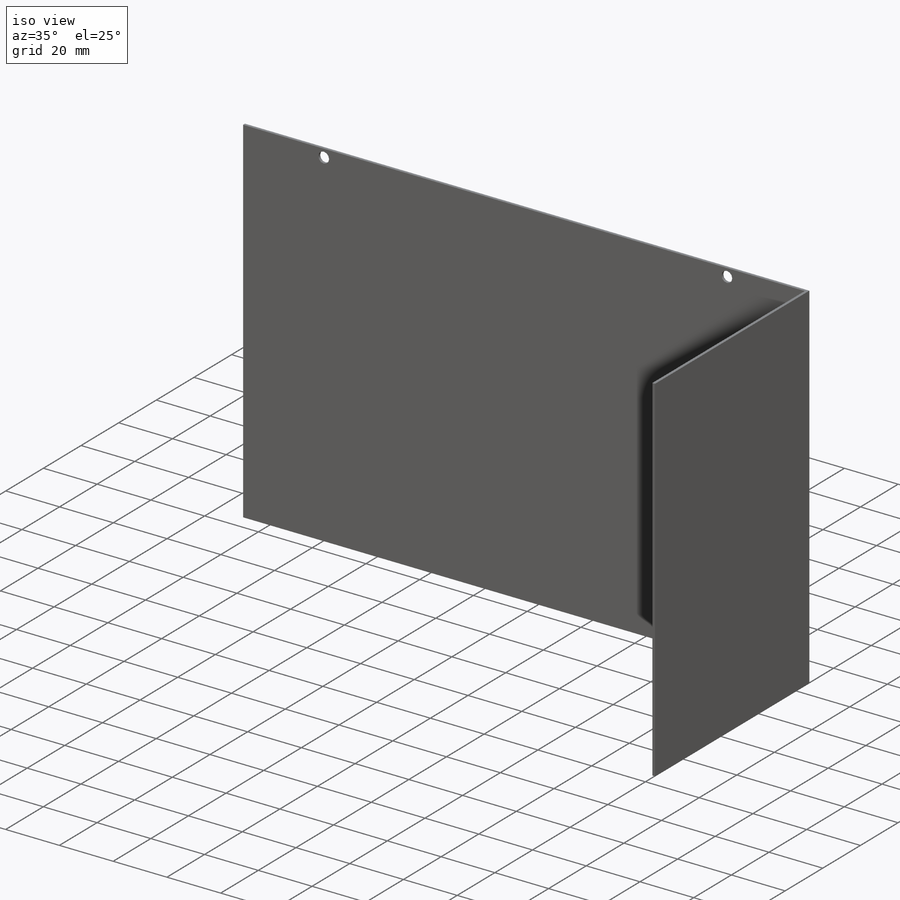
[diagram: iso view]
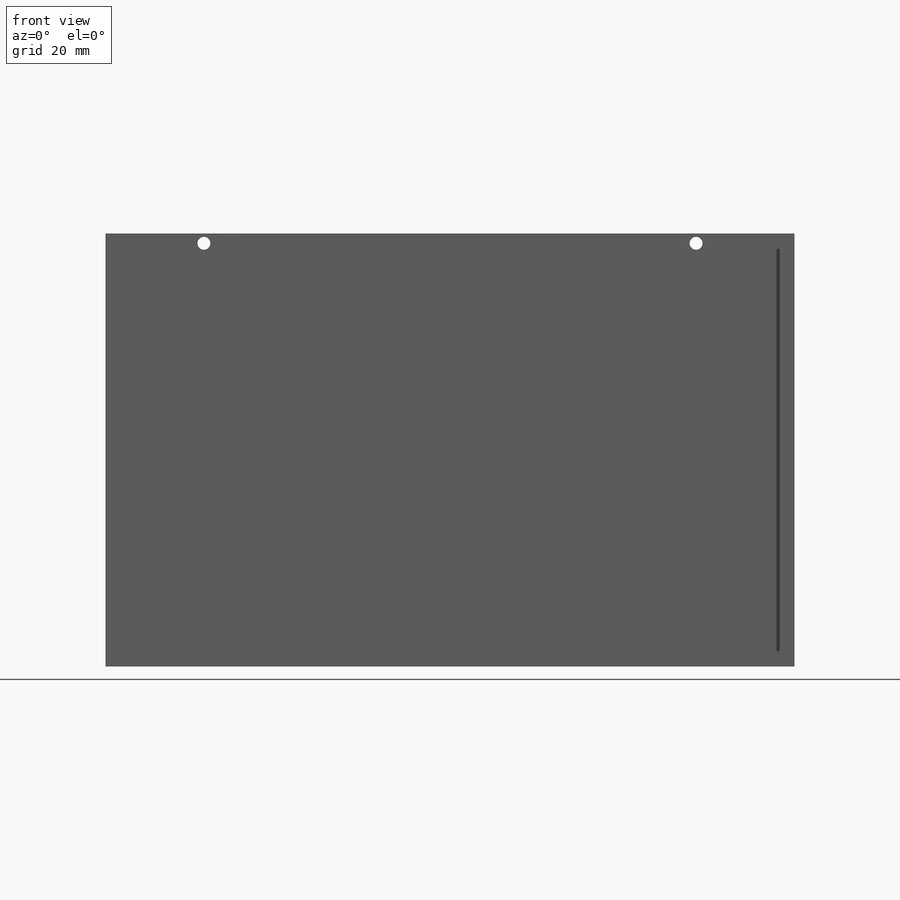
[diagram: front view]
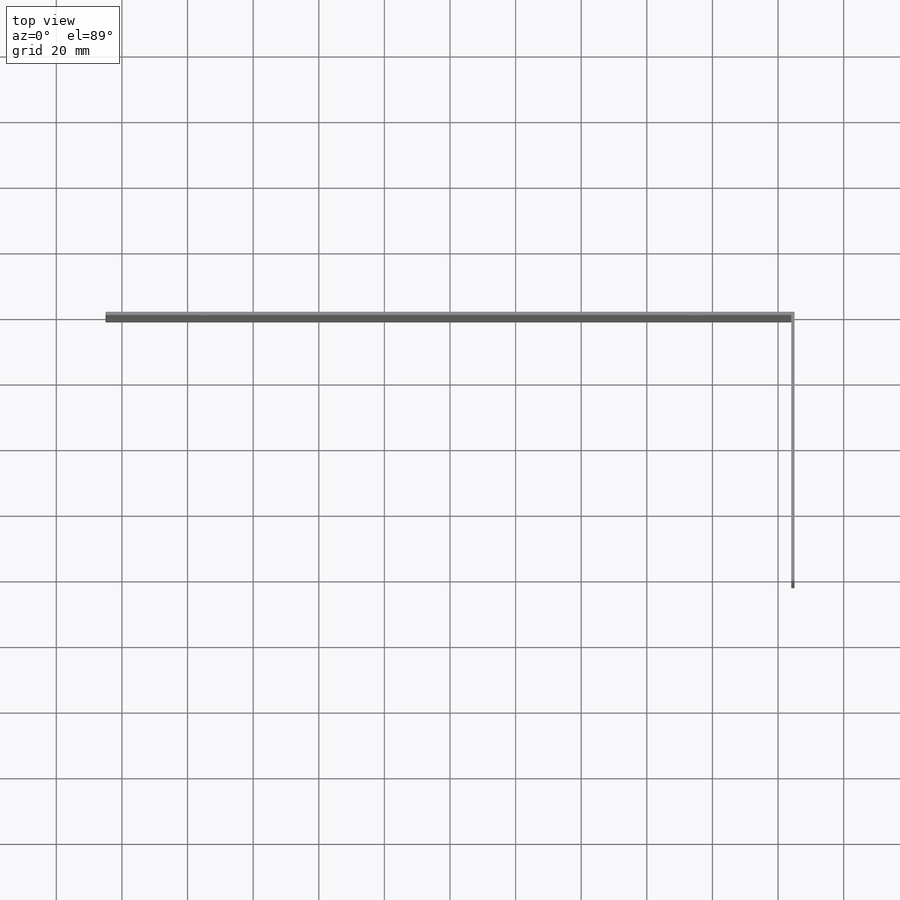
[diagram: top view]
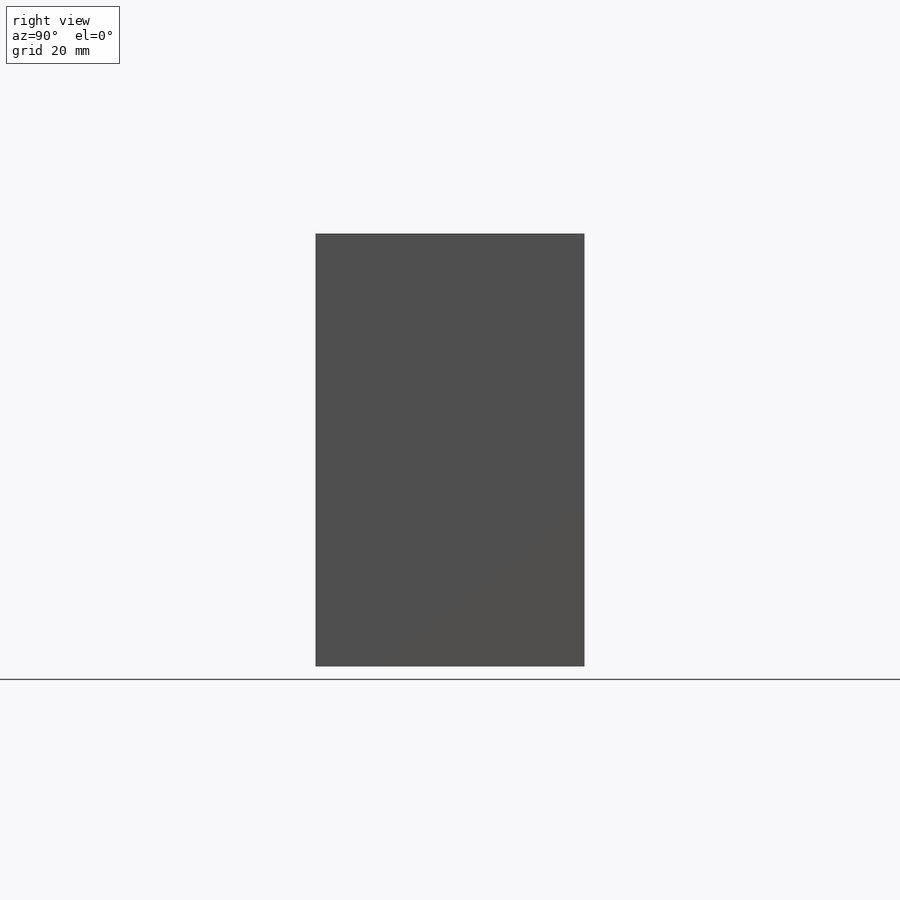
[diagram: right view]
SOLIDWORKS PART (.sldprt)
format: sldprt  version: not decoded by parser v0  size: 180,736 bytes
history: native  units: mm
features: plane x3, sketch x3, extrude x2, material x1, cut_extrude x1 (+10 scaffold rows collapsed)
feature tree (20):
  scaffold x10  (default folders/planes/origin — collapsed)
  material  "普通碳钢"
  plane  "前视"
  plane  "上视"
  plane  "右视"
  sketch  "草图1"  dims[D1=132.0mm D2=210.0mm]
  extrude  "凸台-拉伸1"  Depth=1mm
  sketch  "草图3"  dims[D1=1.0mm]
  extrude  "凸台-拉伸2"  Depth=81mm
  sketch  "草图2"  dims[c1.D1=~4.041164mm c1.D4=4.0mm c1.D5=4.0mm c2.D1=150.0mm c2.D2=30.0mm c2.D3=3.0mm]
  cut_extrude  "切除-拉伸1"  Depth=1mm
decode coverage: 6 of 6 modeling features carry decoded parameters
note: ~ marks probable driven/reference dimensions
note: suppression state not decoded; provenance and decode notes live in map.json
